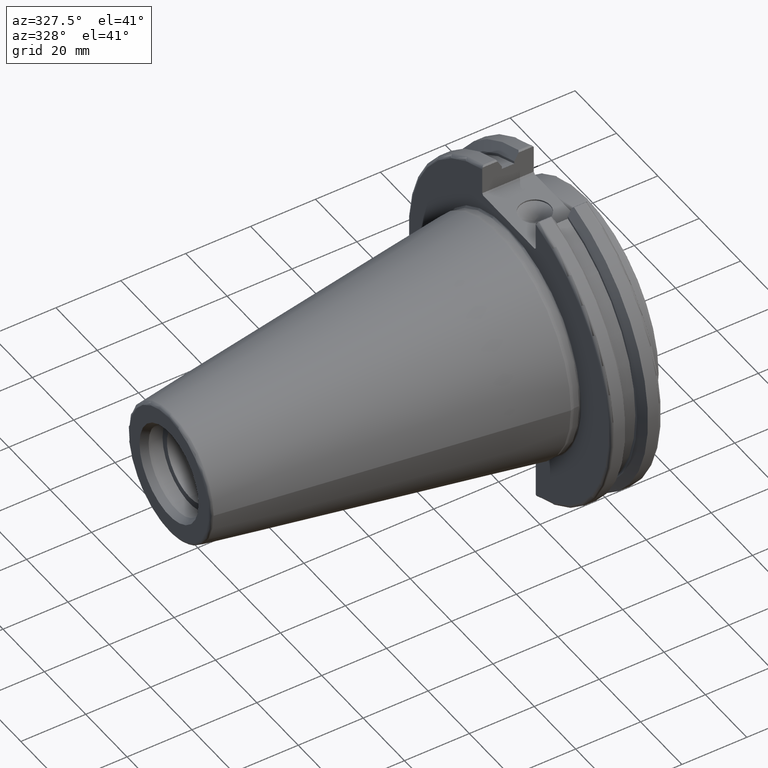
[diagram: clean part render]
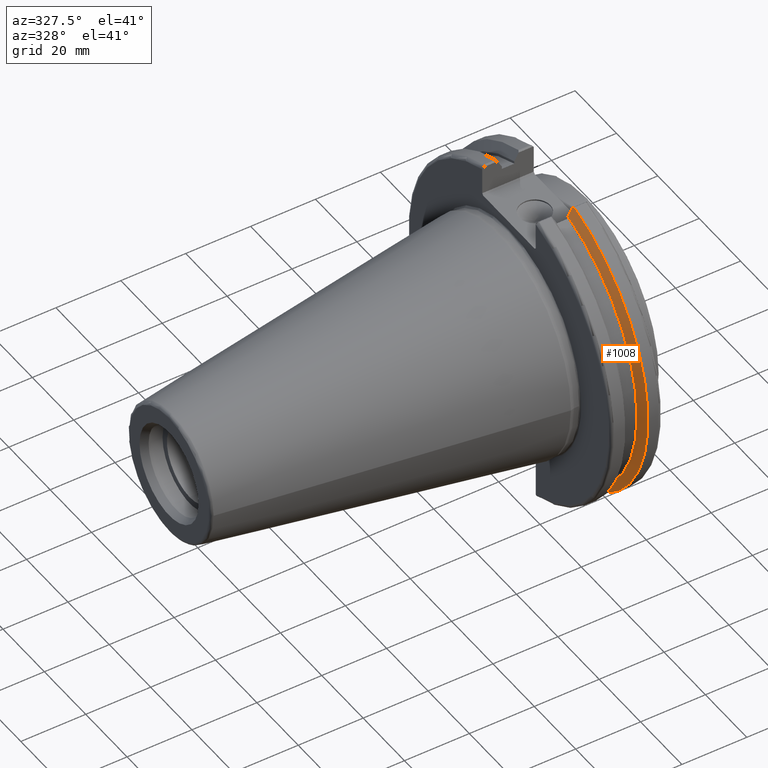
[diagram: same view with one face highlighted and labeled with its STEP entity id]
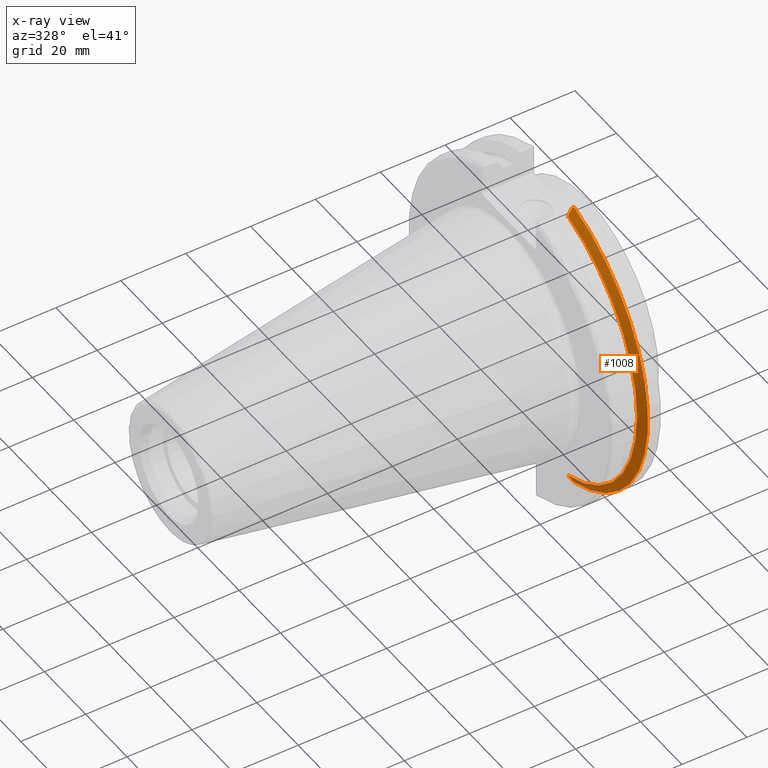
[diagram: x-ray of the same camera — body ghosted, the highlighted face saturated]
A machine part, auxiliary view. The second image highlights one B-rep face of the part: STEP entity #1008.
The next image is the same camera in x-ray: the body ghosted, the highlighted face saturated — about 6% of this face is hidden behind the body in this view.
In plain terms, the highlighted conical surface has half-angle 60 deg.
Its self-contained STEP definition (entity closure, byte-faithful):
#19=(
BOUNDED_CURVE()
B_SPLINE_CURVE(2,(#1680,#1681,#1682),.UNSPECIFIED.,.F.,.F.)
B_SPLINE_CURVE_WITH_KNOTS((3,3),(0.0558332664513841,0.331657177124504),
 .UNSPECIFIED.)
CURVE()
GEOMETRIC_REPRESENTATION_ITEM()
RATIONAL_B_SPLINE_CURVE((1.0001287363678,1.00038235574463,1.))
REPRESENTATION_ITEM('')
);
#20=(
BOUNDED_CURVE()
B_SPLINE_CURVE(2,(#1688,#1689,#1690),.UNSPECIFIED.,.F.,.F.)
B_SPLINE_CURVE_WITH_KNOTS((3,3),(0.,0.275823910673016),.UNSPECIFIED.)
CURVE()
GEOMETRIC_REPRESENTATION_ITEM()
RATIONAL_B_SPLINE_CURVE((1.,1.00038235574188,1.00012873636688))
REPRESENTATION_ITEM('')
);
#27=(
BOUNDED_CURVE()
B_SPLINE_CURVE(2,(#1823,#1824,#1825),.UNSPECIFIED.,.F.,.F.)
B_SPLINE_CURVE_WITH_KNOTS((3,3),(0.,0.064824047289736),.UNSPECIFIED.)
CURVE()
GEOMETRIC_REPRESENTATION_ITEM()
RATIONAL_B_SPLINE_CURVE((1.,1.00011477674827,1.00019140645933))
REPRESENTATION_ITEM('')
);
#28=(
BOUNDED_CURVE()
B_SPLINE_CURVE(2,(#1839,#1840,#1841),.UNSPECIFIED.,.F.,.F.)
B_SPLINE_CURVE_WITH_KNOTS((3,3),(0.325260944932422,0.390084992222201),
 .UNSPECIFIED.)
CURVE()
GEOMETRIC_REPRESENTATION_ITEM()
RATIONAL_B_SPLINE_CURVE((1.00019140645968,1.00011477674848,1.))
REPRESENTATION_ITEM('')
);
#85=CONICAL_SURFACE('',#1125,47.8172386482472,1.0471975511966);
#278=FACE_OUTER_BOUND('',#339,.T.);
#339=EDGE_LOOP('',(#880,#881,#882,#883,#884,#885));
#394=CIRCLE('',#1119,49.2125);
#397=CIRCLE('',#1126,46.4219772964944);
#472=VERTEX_POINT('',#1677);
#473=VERTEX_POINT('',#1679);
#474=VERTEX_POINT('',#1685);
#475=VERTEX_POINT('',#1687);
#500=VERTEX_POINT('',#1821);
#501=VERTEX_POINT('',#1827);
#588=EDGE_CURVE('',#473,#472,#19,.T.);
#591=EDGE_CURVE('',#475,#474,#20,.T.);
#633=EDGE_CURVE('',#500,#474,#27,.T.);
#635=EDGE_CURVE('',#501,#500,#394,.T.);
#640=EDGE_CURVE('',#473,#501,#28,.T.);
#641=EDGE_CURVE('',#472,#475,#397,.T.);
#880=ORIENTED_EDGE('',*,*,#633,.F.);
#881=ORIENTED_EDGE('',*,*,#635,.F.);
#882=ORIENTED_EDGE('',*,*,#640,.F.);
#883=ORIENTED_EDGE('',*,*,#588,.T.);
#884=ORIENTED_EDGE('',*,*,#641,.T.);
#885=ORIENTED_EDGE('',*,*,#591,.T.);
#1008=ADVANCED_FACE('',(#278),#85,.T.);
#1119=AXIS2_PLACEMENT_3D('',#1829,#1357,#1358);
#1125=AXIS2_PLACEMENT_3D('',#1842,#1371,#1372);
#1126=AXIS2_PLACEMENT_3D('',#1843,#1373,#1374);
#1357=DIRECTION('center_axis',(1.,0.,0.));
#1358=DIRECTION('ref_axis',(0.,0.,-1.));
#1371=DIRECTION('center_axis',(1.,0.,0.));
#1372=DIRECTION('ref_axis',(0.,-1.,-1.22464679914735E-16));
#1373=DIRECTION('center_axis',(1.,0.,0.));
#1374=DIRECTION('ref_axis',(0.,0.,-1.));
#1677=CARTESIAN_POINT('',(13.0491,-12.95,44.5791147973604));
#1679=CARTESIAN_POINT('',(14.3818103943757,-12.95,46.9780755322918));
#1680=CARTESIAN_POINT('Ctrl Pts',(14.3818103943757,-12.95,46.9780755322917));
#1681=CARTESIAN_POINT('Ctrl Pts',(13.6979955094656,-12.95,45.7494966802583));
#1682=CARTESIAN_POINT('Ctrl Pts',(13.0491,-12.95,44.5791147973604));
#1685=CARTESIAN_POINT('',(14.3818103943757,-12.95,-46.9780755322917));
#1687=CARTESIAN_POINT('',(13.0491,-12.95,-44.5791147973604));
#1688=CARTESIAN_POINT('Ctrl Pts',(13.0491,-12.95,-44.5791147973604));
#1689=CARTESIAN_POINT('Ctrl Pts',(13.697995509465,-12.95,-45.7494966802572));
#1690=CARTESIAN_POINT('Ctrl Pts',(14.3818103943757,-12.95,-46.9780755322917));
#1821=CARTESIAN_POINT('',(14.6602090340487,-13.4317035994433,-47.3440544806494));
#1823=CARTESIAN_POINT('Ctrl Pts',(14.6602090340487,-13.4317035994433,-47.3440544806494));
#1824=CARTESIAN_POINT('Ctrl Pts',(14.5199310333618,-13.1896660169966,-47.1601640966265));
#1825=CARTESIAN_POINT('Ctrl Pts',(14.3818103943757,-12.95,-46.9780755322917));
#1827=CARTESIAN_POINT('',(14.6602090340487,-13.4317035994433,47.3440544806494));
#1829=CARTESIAN_POINT('Origin',(14.6602090340487,0.,0.));
#1839=CARTESIAN_POINT('Ctrl Pts',(14.3818103943757,-12.95,46.9780755322918));
#1840=CARTESIAN_POINT('Ctrl Pts',(14.5199310333618,-13.1896660169966,47.1601640966264));
#1841=CARTESIAN_POINT('Ctrl Pts',(14.6602090340487,-13.4317035994433,47.3440544806494));
#1842=CARTESIAN_POINT('Origin',(13.8546545170244,0.,0.));
#1843=CARTESIAN_POINT('Origin',(13.0491,0.,0.));